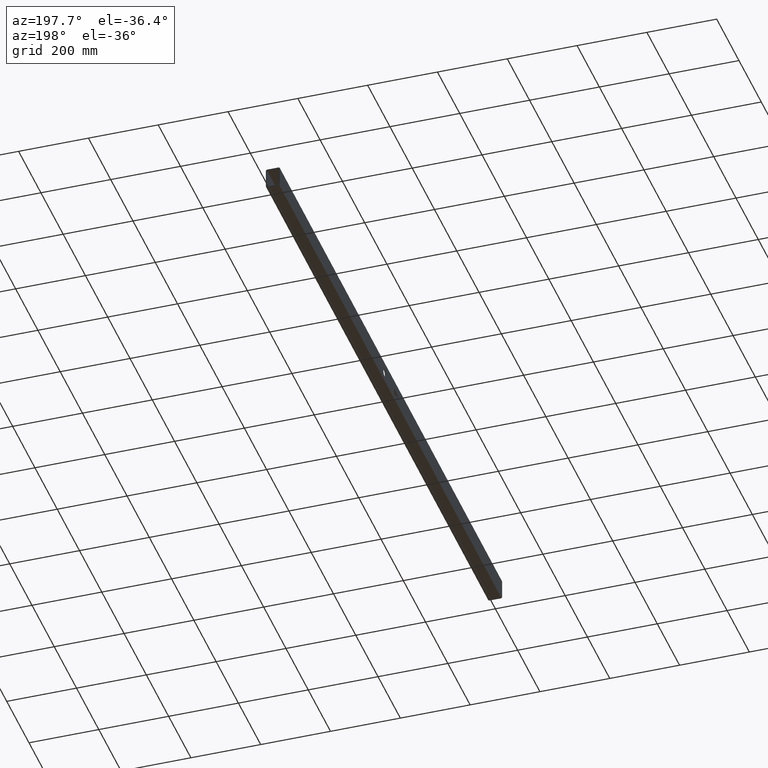
[diagram: clean part render]
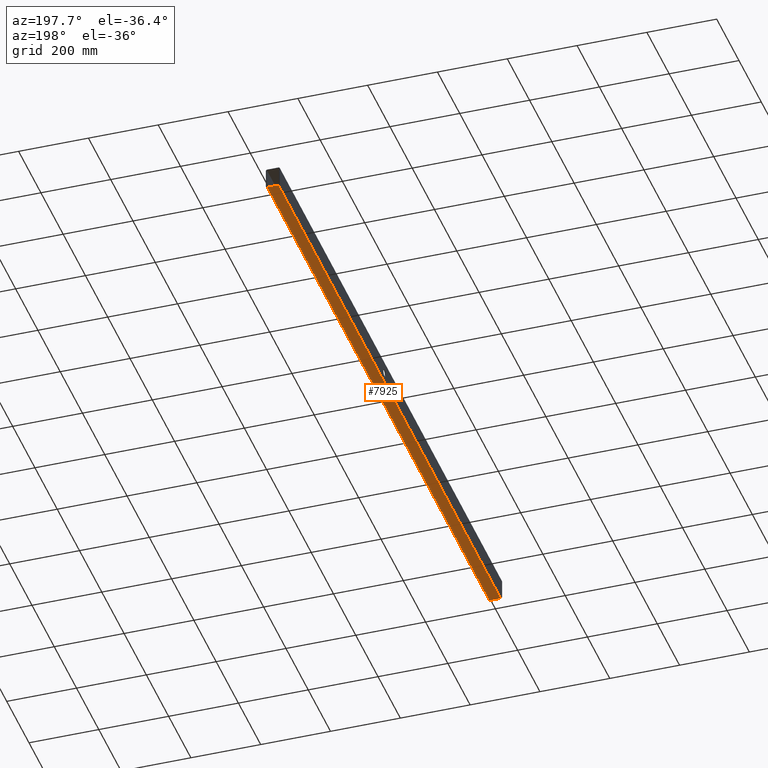
[diagram: same view with one face highlighted and labeled with its STEP entity id]
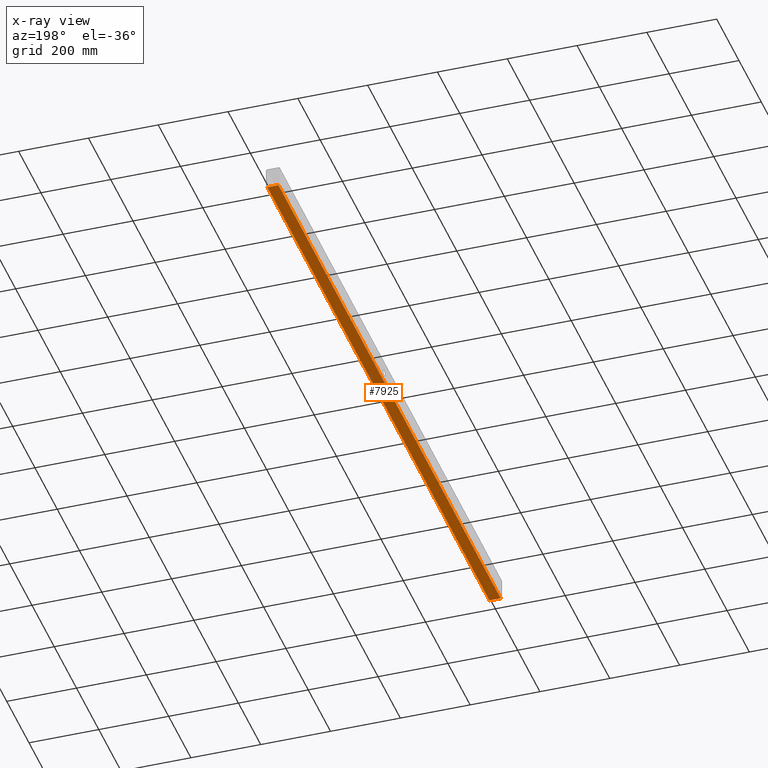
[diagram: x-ray of the same camera — body ghosted, the highlighted face saturated]
A machine part, auxiliary view. The second image highlights one B-rep face of the part: STEP entity #7925.
The next image is the same camera in x-ray: the body ghosted, the highlighted face saturated — about 0% of this face is hidden behind the body in this view.
In plain terms, the highlighted planar face has unit normal (0, 0, 1).
Its self-contained STEP definition (entity closure, byte-faithful):
#112 = CARTESIAN_POINT ( 'NONE',  ( -16.00000000000000000, -997.5000000000000000, -30.00000000000000355 ) ) ;
#130 = LINE ( 'NONE', #5709, #1958 ) ;
#431 = CARTESIAN_POINT ( 'NONE',  ( -16.00000000000000000, 997.5000000000000000, -30.00000000000000355 ) ) ;
#917 = EDGE_CURVE ( 'NONE', #6091, #6980, #130, .T. ) ;
#958 = LINE ( 'NONE', #431, #4650 ) ;
#1139 = CARTESIAN_POINT ( 'NONE',  ( 15.99999999999999289, -997.5000000000000000, -30.00000000000000355 ) ) ;
#1146 = EDGE_LOOP ( 'NONE', ( #11422, #3902, #11336, #5455 ) ) ;
#1856 = DIRECTION ( 'NONE',  ( -0.000000000000000000, -1.000000000000000000, -0.000000000000000000 ) ) ;
#1958 = VECTOR ( 'NONE', #4657, 1000.000000000000000 ) ;
#2054 = FACE_OUTER_BOUND ( 'NONE', #1146, .T. ) ;
#2746 = CARTESIAN_POINT ( 'NONE',  ( 15.99999999999999289, 997.5000000000000000, -30.00000000000000355 ) ) ;
#3902 = ORIENTED_EDGE ( 'NONE', *, *, #9726, .F. ) ;
#4286 = DIRECTION ( 'NONE',  ( 1.000000000000000000, 0.000000000000000000, -0.000000000000000000 ) ) ;
#4419 = DIRECTION ( 'NONE',  ( -0.000000000000000000, -1.000000000000000000, -0.000000000000000000 ) ) ;
#4600 = LINE ( 'NONE', #7580, #6939 ) ;
#4637 = VECTOR ( 'NONE', #1856, 1000.000000000000000 ) ;
#4650 = VECTOR ( 'NONE', #4419, 1000.000000000000000 ) ;
#4657 = DIRECTION ( 'NONE',  ( -1.000000000000000000, -0.000000000000000000, -0.000000000000000000 ) ) ;
#5175 = VERTEX_POINT ( 'NONE', #9924 ) ;
#5294 = PLANE ( 'NONE',  #8583 ) ;
#5455 = ORIENTED_EDGE ( 'NONE', *, *, #10155, .T. ) ;
#5709 = CARTESIAN_POINT ( 'NONE',  ( -16.00000000000000000, -997.5000000000000000, -30.00000000000000355 ) ) ;
#6091 = VERTEX_POINT ( 'NONE', #1139 ) ;
#6718 = VERTEX_POINT ( 'NONE', #8297 ) ;
#6939 = VECTOR ( 'NONE', #9682, 1000.000000000000000 ) ;
#6980 = VERTEX_POINT ( 'NONE', #112 ) ;
#7580 = CARTESIAN_POINT ( 'NONE',  ( -16.00000000000000000, 997.5000000000000000, -30.00000000000000355 ) ) ;
#7925 = ADVANCED_FACE ( 'NONE', ( #2054 ), #5294, .F. ) ;
#8297 = CARTESIAN_POINT ( 'NONE',  ( 15.99999999999999289, 997.5000000000000000, -30.00000000000000355 ) ) ;
#8583 = AXIS2_PLACEMENT_3D ( 'NONE', #9217, #10204, #4286 ) ;
#9217 = CARTESIAN_POINT ( 'NONE',  ( -16.00000000000000000, 997.5000000000000000, -30.00000000000000355 ) ) ;
#9265 = LINE ( 'NONE', #2746, #4637 ) ;
#9682 = DIRECTION ( 'NONE',  ( -1.000000000000000000, -0.000000000000000000, -0.000000000000000000 ) ) ;
#9726 = EDGE_CURVE ( 'NONE', #5175, #6980, #958, .T. ) ;
#9924 = CARTESIAN_POINT ( 'NONE',  ( -16.00000000000000000, 997.5000000000000000, -30.00000000000000355 ) ) ;
#10155 = EDGE_CURVE ( 'NONE', #6718, #6091, #9265, .T. ) ;
#10204 = DIRECTION ( 'NONE',  ( 0.000000000000000000, 0.000000000000000000, 1.000000000000000000 ) ) ;
#11336 = ORIENTED_EDGE ( 'NONE', *, *, #12755, .F. ) ;
#11422 = ORIENTED_EDGE ( 'NONE', *, *, #917, .T. ) ;
#12755 = EDGE_CURVE ( 'NONE', #6718, #5175, #4600, .T. ) ;